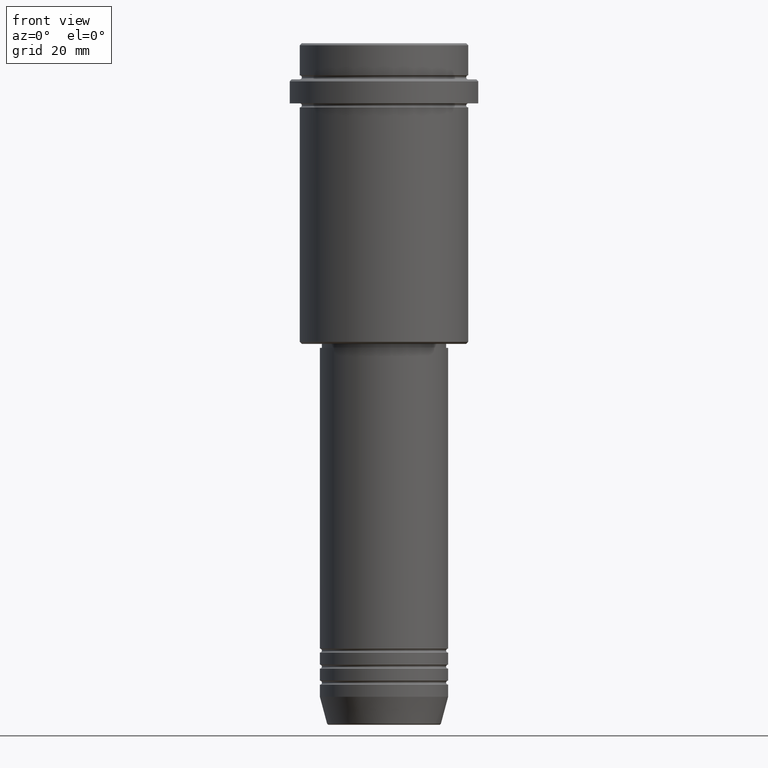
[diagram: clean part render]
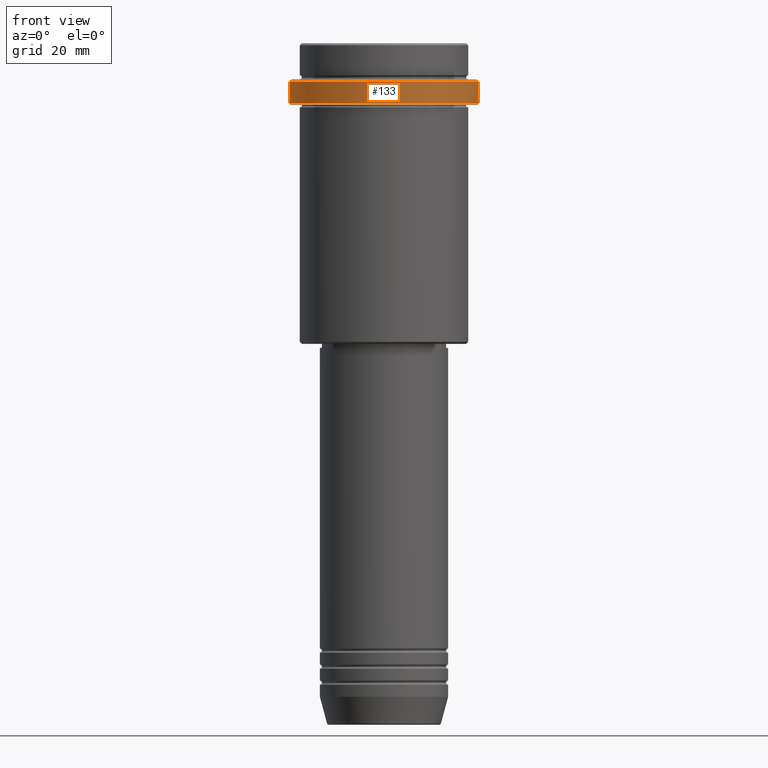
[diagram: same view with one face highlighted and labeled with its STEP entity id]
A machine part, front view. The second image highlights one B-rep face of the part: STEP entity #133.
In plain terms, the highlighted cylindrical surface (partial cylindrical patch) has radius 23.5 mm, axis along (-0, -0, 1).
Its self-contained STEP definition (entity closure, byte-faithful):
#34 = ORIENTED_EDGE ( 'NONE', *, *, #680, .T. ) ;
#41 = DIRECTION ( 'NONE',  ( 1.000000000000000000, 0.000000000000000000, 0.000000000000000000 ) ) ;
#133 = ADVANCED_FACE ( 'NONE', ( #968 ), #1073, .T. ) ;
#136 = VERTEX_POINT ( 'NONE', #519 ) ;
#196 = ORIENTED_EDGE ( 'NONE', *, *, #973, .F. ) ;
#243 = ORIENTED_EDGE ( 'NONE', *, *, #1014, .T. ) ;
#263 = CIRCLE ( 'NONE', #1227, 23.50000000000000355 ) ;
#310 = CIRCLE ( 'NONE', #1110, 23.50000000000000000 ) ;
#330 = EDGE_CURVE ( 'NONE', #136, #539, #814, .T. ) ;
#401 = DIRECTION ( 'NONE',  ( -0.000000000000000000, -0.000000000000000000, 1.000000000000000000 ) ) ;
#437 = LINE ( 'NONE', #861, #1406 ) ;
#519 = CARTESIAN_POINT ( 'NONE',  ( 23.50000000000000355, 0.000000000000000000, -15.00000000000000000 ) ) ;
#524 = CARTESIAN_POINT ( 'NONE',  ( -23.50000000000000000, 2.877919977996280320E-15, -9.500000000000026645 ) ) ;
#536 = CARTESIAN_POINT ( 'NONE',  ( 0.000000000000000000, 0.000000000000000000, 0.000000000000000000 ) ) ;
#539 = VERTEX_POINT ( 'NONE', #786 ) ;
#560 = CARTESIAN_POINT ( 'NONE',  ( 0.000000000000000000, 0.000000000000000000, -15.00000000000000000 ) ) ;
#602 = DIRECTION ( 'NONE',  ( -0.000000000000000000, -0.000000000000000000, 1.000000000000000000 ) ) ;
#680 = EDGE_CURVE ( 'NONE', #539, #790, #310, .T. ) ;
#690 = VECTOR ( 'NONE', #602, 1000.000000000000000 ) ;
#692 = CARTESIAN_POINT ( 'NONE',  ( 0.000000000000000000, 0.000000000000000000, -9.500000000000026645 ) ) ;
#786 = CARTESIAN_POINT ( 'NONE',  ( 23.50000000000000000, 0.000000000000000000, -9.500000000000026645 ) ) ;
#790 = VERTEX_POINT ( 'NONE', #524 ) ;
#814 = LINE ( 'NONE', #1136, #690 ) ;
#854 = DIRECTION ( 'NONE',  ( -0.000000000000000000, -0.000000000000000000, 1.000000000000000000 ) ) ;
#861 = CARTESIAN_POINT ( 'NONE',  ( -23.50000000000000000, 2.877919977996280320E-15, 0.000000000000000000 ) ) ;
#912 = DIRECTION ( 'NONE',  ( 0.000000000000000000, 0.000000000000000000, -1.000000000000000000 ) ) ;
#968 = FACE_OUTER_BOUND ( 'NONE', #1174, .T. ) ;
#973 = EDGE_CURVE ( 'NONE', #1343, #790, #437, .T. ) ;
#991 = DIRECTION ( 'NONE',  ( -0.000000000000000000, -0.000000000000000000, 1.000000000000000000 ) ) ;
#1014 = EDGE_CURVE ( 'NONE', #1343, #136, #263, .T. ) ;
#1046 = CARTESIAN_POINT ( 'NONE',  ( -23.50000000000000711, 2.877919977996281109E-15, -15.00000000000000000 ) ) ;
#1073 = CYLINDRICAL_SURFACE ( 'NONE', #1315, 23.50000000000000000 ) ;
#1110 = AXIS2_PLACEMENT_3D ( 'NONE', #692, #912, #41 ) ;
#1136 = CARTESIAN_POINT ( 'NONE',  ( 23.50000000000000000, 0.000000000000000000, 0.000000000000000000 ) ) ;
#1174 = EDGE_LOOP ( 'NONE', ( #196, #243, #1403, #34 ) ) ;
#1206 = DIRECTION ( 'NONE',  ( 1.000000000000000000, 0.000000000000000000, 0.000000000000000000 ) ) ;
#1227 = AXIS2_PLACEMENT_3D ( 'NONE', #560, #991, #1206 ) ;
#1304 = DIRECTION ( 'NONE',  ( 1.000000000000000000, 0.000000000000000000, 0.000000000000000000 ) ) ;
#1315 = AXIS2_PLACEMENT_3D ( 'NONE', #536, #401, #1304 ) ;
#1343 = VERTEX_POINT ( 'NONE', #1046 ) ;
#1403 = ORIENTED_EDGE ( 'NONE', *, *, #330, .T. ) ;
#1406 = VECTOR ( 'NONE', #854, 1000.000000000000000 ) ;